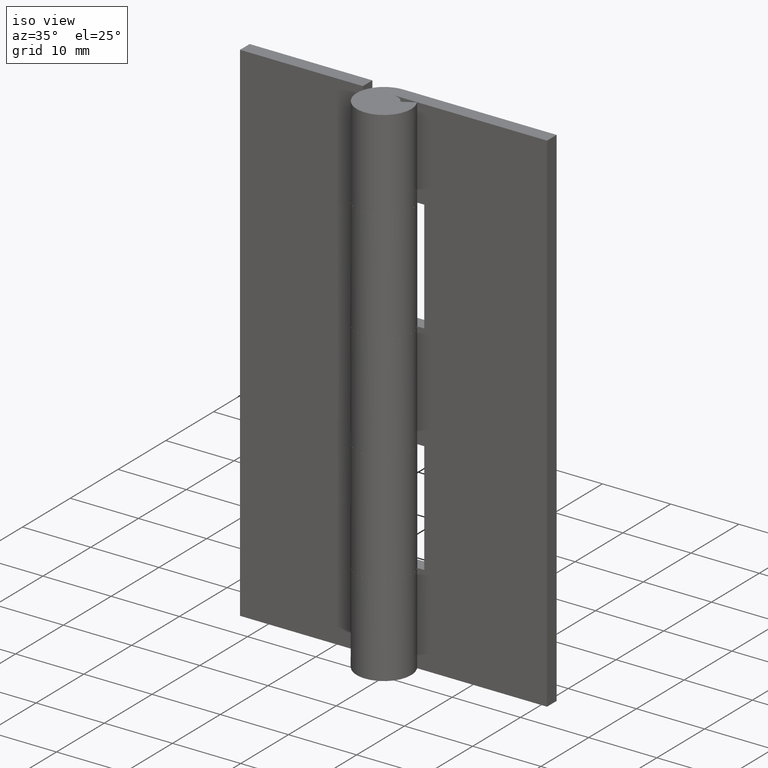
[diagram: clean part render]
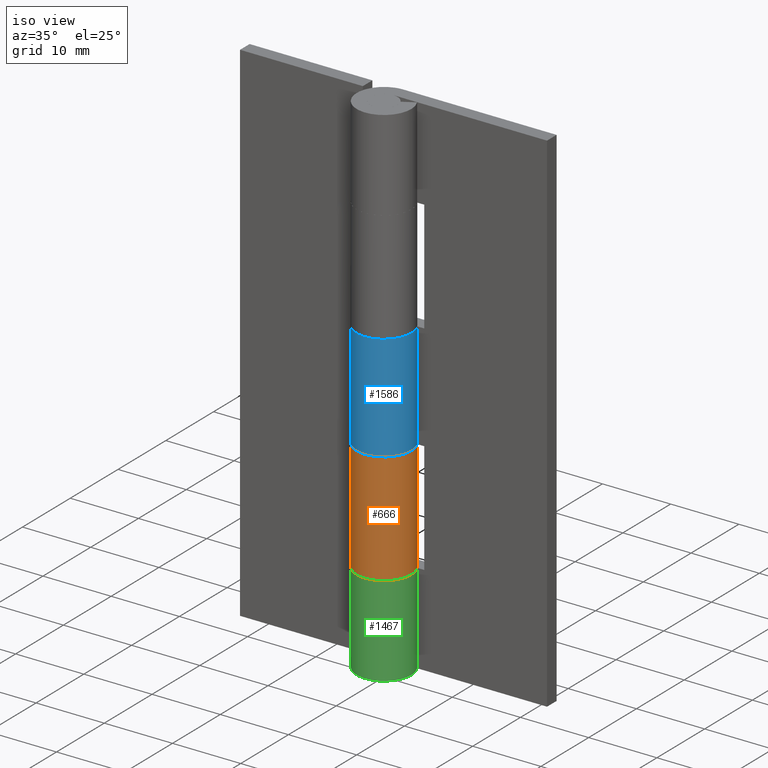
[diagram: same view with three faces highlighted in distinct colors, each labeled with its STEP entity id]
A machine part, iso view with three faces highlighted in distinct colors.
Their STEP definitions:

[orange] entity #666 — the highlighted face is a freeform B-spline surface patch.
#51=CARTESIAN_POINT('',(0.0,4.0,29.699996999999900));
#52=VERTEX_POINT('',#51);
#93=CARTESIAN_POINT('',(-3.492491947020060,1.950000000000000,29.699996999999900));
#94=VERTEX_POINT('',#93);
#100=CARTESIAN_POINT('',(0.0,4.0,29.699996999999900));
#101=CARTESIAN_POINT('',(3.057904543451449,4.000000000000001,29.699996999999900));
#102=CARTESIAN_POINT('',(3.859957943328416,1.049154266891131,29.699996999999900));
#103=CARTESIAN_POINT('',(4.662011343205384,-1.901691466217742,29.699996999999900));
#104=CARTESIAN_POINT('',(2.024845673131658,-3.449637662132069,29.699996999999900));
#105=CARTESIAN_POINT('',(-0.612319996942068,-4.997583858046397,29.699996999999900));
#106=CARTESIAN_POINT('',(-2.797770204447359,-2.858755303118227,29.699996999999900));
#107=CARTESIAN_POINT('',(-4.983220411952647,-0.719926748190060,29.699996999999900));
#108=CARTESIAN_POINT('',(-3.492491947020063,1.950000000000003,29.699996999999900));
#116=(BOUNDED_CURVE()B_SPLINE_CURVE(2,(#100,#101,#102,#103,#104,#105,#106,#107,#108),.UNSPECIFIED.,.F.,.U.)B_SPLINE_CURVE_WITH_KNOTS((3,2,2,2,3),(0.0,0.250000000000000,0.500000000000000,0.750000000000000,1.0),.UNSPECIFIED.)CURVE()GEOMETRIC_REPRESENTATION_ITEM()RATIONAL_B_SPLINE_CURVE((1.0,0.794445897063728,1.0,0.794445897063728,1.0,0.794445897063728,1.0,0.794445897063728,1.0))REPRESENTATION_ITEM(''));
#117=EDGE_CURVE('',#52,#94,#116,.T.);
#225=CARTESIAN_POINT('',(-3.492491947020060,1.950000000000000,13.300003000000000));
#226=VERTEX_POINT('',#225);
#227=CARTESIAN_POINT('',(0.0,4.0,13.300003000000000));
#228=VERTEX_POINT('',#227);
#229=CARTESIAN_POINT('',(-3.492491947020063,1.950000000000002,13.300003000000000));
#230=CARTESIAN_POINT('',(-4.983220411952647,-0.719926748190061,13.300002999999998));
#231=CARTESIAN_POINT('',(-2.797770204447358,-2.858755303118228,13.300003000000000));
#232=CARTESIAN_POINT('',(-0.612319996942067,-4.997583858046397,13.300002999999998));
#233=CARTESIAN_POINT('',(2.024845673131658,-3.449637662132068,13.300003000000000));
#234=CARTESIAN_POINT('',(4.662011343205381,-1.901691466217742,13.300002999999998));
#235=CARTESIAN_POINT('',(3.859957943328416,1.049154266891129,13.300003000000000));
#236=CARTESIAN_POINT('',(3.057904543451453,4.000000000000000,13.300002999999998));
#237=CARTESIAN_POINT('',(0.0,4.0,13.300003000000000));
#245=(BOUNDED_CURVE()B_SPLINE_CURVE(2,(#229,#230,#231,#232,#233,#234,#235,#236,#237),.UNSPECIFIED.,.F.,.U.)B_SPLINE_CURVE_WITH_KNOTS((3,2,2,2,3),(0.0,0.250000000000000,0.500000000000000,0.750000000000000,1.0),.UNSPECIFIED.)CURVE()GEOMETRIC_REPRESENTATION_ITEM()RATIONAL_B_SPLINE_CURVE((1.0,0.794445897063728,1.0,0.794445897063728,1.0,0.794445897063728,1.0,0.794445897063728,1.0))REPRESENTATION_ITEM(''));
#246=EDGE_CURVE('',#226,#228,#245,.T.);
#607=CARTESIAN_POINT('',(-3.492491947020060,1.950000000000000,29.699996999999900));
#608=CARTESIAN_POINT('',(-3.492491947020060,1.950000000000000,13.300003000000000));
#609=QUASI_UNIFORM_CURVE('',1,(#607,#608),.UNSPECIFIED.,.F.,.U.);
#610=EDGE_CURVE('',#94,#226,#609,.T.);
#634=CARTESIAN_POINT('',(-3.410560657416367,2.089994258863795,30.109996849999899));
#635=CARTESIAN_POINT('',(-3.410560657416367,2.089994258863795,12.879753153750000));
#636=CARTESIAN_POINT('',(-5.991488624861849,-2.121697399169993,30.109996849999909));
#637=CARTESIAN_POINT('',(-5.991488624861849,-2.121697399169993,12.879753153750002));
#638=CARTESIAN_POINT('',(-1.335227436935084,-3.770565964368712,30.109996849999899));
#639=CARTESIAN_POINT('',(-1.335227436935084,-3.770565964368712,12.879753153750000));
#640=CARTESIAN_POINT('',(3.321033750991682,-5.419434529567431,30.109996849999909));
#641=CARTESIAN_POINT('',(3.321033750991682,-5.419434529567431,12.879753153750002));
#642=CARTESIAN_POINT('',(3.965779445495240,-0.522104768880208,30.109996849999899));
#643=CARTESIAN_POINT('',(3.965779445495240,-0.522104768880208,12.879753153750000));
#644=CARTESIAN_POINT('',(4.610525139998799,4.375224991807015,30.109996849999909));
#645=CARTESIAN_POINT('',(4.610525139998799,4.375224991807015,12.879753153750002));
#646=CARTESIAN_POINT('',(-0.313836382911377,3.987669334932510,30.109996849999899));
#647=CARTESIAN_POINT('',(-0.313836382911377,3.987669334932510,12.879753153750000));
#655=(BOUNDED_SURFACE()B_SPLINE_SURFACE(1,2,((#634,#636,#638,#640,#642,#644,#646),(#635,#637,#639,#641,#643,#645,#647)),.UNSPECIFIED.,.F.,.F.,.U.)B_SPLINE_SURFACE_WITH_KNOTS((2,2),(3,2,2,3),(0.0,17.230243696249900),(0.0,7.631608523170559,15.263217046341120,22.894825569511681),.UNSPECIFIED.)GEOMETRIC_REPRESENTATION_ITEM()RATIONAL_B_SPLINE_SURFACE(((1.0,0.629320391049838,1.0,0.629320391049838,1.0,0.629320391049838,1.0),(1.0,0.629320391049838,1.0,0.629320391049838,1.0,0.629320391049838,1.0)))REPRESENTATION_ITEM('')SURFACE());
#656=ORIENTED_EDGE('',*,*,#117,.T.);
#657=ORIENTED_EDGE('',*,*,#610,.T.);
#658=ORIENTED_EDGE('',*,*,#246,.T.);
#659=CARTESIAN_POINT('',(0.0,4.0,29.699996999999900));
#660=CARTESIAN_POINT('',(0.0,4.0,13.300003000000000));
#661=QUASI_UNIFORM_CURVE('',1,(#659,#660),.UNSPECIFIED.,.F.,.U.);
#662=EDGE_CURVE('',#52,#228,#661,.T.);
#663=ORIENTED_EDGE('',*,*,#662,.F.);
#664=EDGE_LOOP('',(#656,#657,#658,#663));
#665=FACE_OUTER_BOUND('',#664,.T.);
#666=ADVANCED_FACE('',(#665),#655,.T.);

[blue] entity #1586 — the highlighted face is a freeform B-spline surface patch.
#766=CARTESIAN_POINT('',(3.492491947020065,1.950000000000000,29.699997000000248));
#767=VERTEX_POINT('',#766);
#768=CARTESIAN_POINT('',(-7.347614E-016,4.0,29.699997000000199));
#769=VERTEX_POINT('',#768);
#770=CARTESIAN_POINT('',(3.492491947020065,1.949999999999999,29.699997000000248));
#771=CARTESIAN_POINT('',(4.983220411952646,-0.719926748190065,29.699997000000248));
#772=CARTESIAN_POINT('',(2.797770204447355,-2.858755303118231,29.699997000000248));
#773=CARTESIAN_POINT('',(0.612319996942063,-4.997583858046395,29.699997000000248));
#774=CARTESIAN_POINT('',(-2.024845673131658,-3.449637662132068,29.699997000000248));
#775=CARTESIAN_POINT('',(-4.662011343205381,-1.901691466217742,29.699997000000248));
#776=CARTESIAN_POINT('',(-3.859957943328416,1.049154266891129,29.699997000000248));
#777=CARTESIAN_POINT('',(-3.057904543451453,4.0,29.699997000000248));
#778=CARTESIAN_POINT('',(0.0,4.0,29.699997000000248));
#786=(BOUNDED_CURVE()B_SPLINE_CURVE(2,(#770,#771,#772,#773,#774,#775,#776,#777,#778),.UNSPECIFIED.,.F.,.U.)B_SPLINE_CURVE_WITH_KNOTS((3,2,2,2,3),(0.0,0.250000000000000,0.500000000000000,0.750000000000000,1.0),.UNSPECIFIED.)CURVE()GEOMETRIC_REPRESENTATION_ITEM()RATIONAL_B_SPLINE_CURVE((1.0,0.794445897063728,1.0,0.794445897063728,1.0,0.794445897063728,1.0,0.794445897063728,1.0))REPRESENTATION_ITEM(''));
#787=EDGE_CURVE('',#767,#769,#786,.T.);
#958=CARTESIAN_POINT('',(-7.347638E-016,4.0,45.300002999999798));
#959=VERTEX_POINT('',#958);
#965=CARTESIAN_POINT('',(3.492491947020065,1.950000000000000,45.300002999999798));
#966=VERTEX_POINT('',#965);
#967=CARTESIAN_POINT('',(0.0,4.0,45.300002999999798));
#968=CARTESIAN_POINT('',(-3.057904543451449,4.000000000000001,45.300002999999805));
#969=CARTESIAN_POINT('',(-3.859957943328416,1.049154266891131,45.300002999999798));
#970=CARTESIAN_POINT('',(-4.662011343205382,-1.901691466217738,45.300002999999805));
#971=CARTESIAN_POINT('',(-2.024845673131661,-3.449637662132068,45.300002999999798));
#972=CARTESIAN_POINT('',(0.612319996942061,-4.997583858046397,45.300002999999805));
#973=CARTESIAN_POINT('',(2.797770204447353,-2.858755303118233,45.300002999999798));
#974=CARTESIAN_POINT('',(4.983220411952645,-0.719926748190069,45.300002999999805));
#975=CARTESIAN_POINT('',(3.492491947020067,1.949999999999997,45.300002999999798));
#983=(BOUNDED_CURVE()B_SPLINE_CURVE(2,(#967,#968,#969,#970,#971,#972,#973,#974,#975),.UNSPECIFIED.,.F.,.U.)B_SPLINE_CURVE_WITH_KNOTS((3,2,2,2,3),(0.0,0.250000000000000,0.500000000000000,0.750000000000000,1.0),.UNSPECIFIED.)CURVE()GEOMETRIC_REPRESENTATION_ITEM()RATIONAL_B_SPLINE_CURVE((1.0,0.794445897063728,1.0,0.794445897063728,1.0,0.794445897063728,1.0,0.794445897063728,1.0))REPRESENTATION_ITEM(''));
#984=EDGE_CURVE('',#959,#966,#983,.T.);
#1318=CARTESIAN_POINT('',(3.492491947020065,1.950000000000000,45.300002999999798));
#1319=CARTESIAN_POINT('',(3.492491947020065,1.950000000000000,29.699997000000248));
#1320=QUASI_UNIFORM_CURVE('',1,(#1318,#1319),.UNSPECIFIED.,.F.,.U.);
#1321=EDGE_CURVE('',#966,#767,#1320,.T.);
#1415=CARTESIAN_POINT('',(-7.347638E-016,4.0,45.300002999999798));
#1416=CARTESIAN_POINT('',(-7.347614E-016,4.0,29.699997000000199));
#1417=QUASI_UNIFORM_CURVE('',1,(#1415,#1416),.UNSPECIFIED.,.F.,.U.);
#1418=EDGE_CURVE('',#959,#769,#1417,.T.);
#1558=CARTESIAN_POINT('',(0.162173709109514,3.996711108908630,45.690003149999797));
#1559=CARTESIAN_POINT('',(0.162173709109514,3.996711108908630,29.300246846250211));
#1560=CARTESIAN_POINT('',(-4.773353474773805,4.196978961152711,45.690003149999797));
#1561=CARTESIAN_POINT('',(-4.773353474773805,4.196978961152711,29.300246846250207));
#1562=CARTESIAN_POINT('',(-3.943091192072271,-0.672333139895742,45.690003149999797));
#1563=CARTESIAN_POINT('',(-3.943091192072271,-0.672333139895742,29.300246846250211));
#1564=CARTESIAN_POINT('',(-3.112828909370736,-5.541645240944193,45.690003149999797));
#1565=CARTESIAN_POINT('',(-3.112828909370736,-5.541645240944193,29.300246846250207));
#1566=CARTESIAN_POINT('',(1.477455804475205,-3.717139269091557,45.690003149999797));
#1567=CARTESIAN_POINT('',(1.477455804475205,-3.717139269091557,29.300246846250211));
#1568=CARTESIAN_POINT('',(6.067740518321146,-1.892633297238919,45.690003149999797));
#1569=CARTESIAN_POINT('',(6.067740518321146,-1.892633297238919,29.300246846250207));
#1570=CARTESIAN_POINT('',(3.328730523238366,2.218006560779571,45.690003149999797));
#1571=CARTESIAN_POINT('',(3.328730523238366,2.218006560779571,29.300246846250211));
#1579=(BOUNDED_SURFACE()B_SPLINE_SURFACE(1,2,((#1558,#1560,#1562,#1564,#1566,#1568,#1570),(#1559,#1561,#1563,#1565,#1567,#1569,#1571)),.UNSPECIFIED.,.F.,.F.,.U.)B_SPLINE_SURFACE_WITH_KNOTS((2,2),(3,2,2,3),(0.0,16.389756303749589),(0.0,7.631608523170560,15.263217046341120,22.894825569511681),.UNSPECIFIED.)GEOMETRIC_REPRESENTATION_ITEM()RATIONAL_B_SPLINE_SURFACE(((1.0,0.629320391049838,1.0,0.629320391049838,1.0,0.629320391049838,1.0),(1.0,0.629320391049838,1.0,0.629320391049838,1.0,0.629320391049838,1.0)))REPRESENTATION_ITEM('')SURFACE());
#1580=ORIENTED_EDGE('',*,*,#787,.F.);
#1581=ORIENTED_EDGE('',*,*,#1321,.F.);
#1582=ORIENTED_EDGE('',*,*,#984,.F.);
#1583=ORIENTED_EDGE('',*,*,#1418,.T.);
#1584=EDGE_LOOP('',(#1580,#1581,#1582,#1583));
#1585=FACE_OUTER_BOUND('',#1584,.T.);
#1586=ADVANCED_FACE('',(#1585),#1579,.T.);

[green] entity #1467 — the highlighted face is a freeform B-spline surface patch.
#872=CARTESIAN_POINT('',(-7.347614E-016,4.0,13.300003000000000));
#873=VERTEX_POINT('',#872);
#874=CARTESIAN_POINT('',(3.492491947020065,1.950000000000000,13.300003000000000));
#875=VERTEX_POINT('',#874);
#876=CARTESIAN_POINT('',(0.0,4.0,13.300003000000000));
#877=CARTESIAN_POINT('',(-3.057904543451449,4.000000000000001,13.300002999999997));
#878=CARTESIAN_POINT('',(-3.859957943328416,1.049154266891131,13.300003000000000));
#879=CARTESIAN_POINT('',(-4.662011343205382,-1.901691466217738,13.300002999999997));
#880=CARTESIAN_POINT('',(-2.024845673131661,-3.449637662132068,13.300003000000000));
#881=CARTESIAN_POINT('',(0.612319996942061,-4.997583858046397,13.300002999999997));
#882=CARTESIAN_POINT('',(2.797770204447353,-2.858755303118233,13.300003000000000));
#883=CARTESIAN_POINT('',(4.983220411952645,-0.719926748190069,13.300002999999997));
#884=CARTESIAN_POINT('',(3.492491947020067,1.949999999999997,13.300003000000000));
#892=(BOUNDED_CURVE()B_SPLINE_CURVE(2,(#876,#877,#878,#879,#880,#881,#882,#883,#884),.UNSPECIFIED.,.F.,.U.)B_SPLINE_CURVE_WITH_KNOTS((3,2,2,2,3),(0.0,0.250000000000000,0.500000000000000,0.750000000000000,1.0),.UNSPECIFIED.)CURVE()GEOMETRIC_REPRESENTATION_ITEM()RATIONAL_B_SPLINE_CURVE((1.0,0.794445897063728,1.0,0.794445897063728,1.0,0.794445897063728,1.0,0.794445897063728,1.0))REPRESENTATION_ITEM(''));
#893=EDGE_CURVE('',#873,#875,#892,.T.);
#1118=CARTESIAN_POINT('',(-7.347638E-016,4.0,0.0));
#1119=VERTEX_POINT('',#1118);
#1162=CARTESIAN_POINT('',(3.492491947020065,1.950000000000000,0.0));
#1163=VERTEX_POINT('',#1162);
#1169=CARTESIAN_POINT('',(3.492491947020065,1.949999999999999,0.0));
#1170=CARTESIAN_POINT('',(4.983220411952646,-0.719926748190065,0.0));
#1171=CARTESIAN_POINT('',(2.797770204447355,-2.858755303118231,0.0));
#1172=CARTESIAN_POINT('',(0.612319996942063,-4.997583858046395,0.0));
#1173=CARTESIAN_POINT('',(-2.024845673131658,-3.449637662132068,0.0));
#1174=CARTESIAN_POINT('',(-4.662011343205381,-1.901691466217742,0.0));
#1175=CARTESIAN_POINT('',(-3.859957943328416,1.049154266891129,0.0));
#1176=CARTESIAN_POINT('',(-3.057904543451453,4.0,0.0));
#1177=CARTESIAN_POINT('',(0.0,4.0,0.0));
#1185=(BOUNDED_CURVE()B_SPLINE_CURVE(2,(#1169,#1170,#1171,#1172,#1173,#1174,#1175,#1176,#1177),.UNSPECIFIED.,.F.,.U.)B_SPLINE_CURVE_WITH_KNOTS((3,2,2,2,3),(0.0,0.250000000000000,0.500000000000000,0.750000000000000,1.0),.UNSPECIFIED.)CURVE()GEOMETRIC_REPRESENTATION_ITEM()RATIONAL_B_SPLINE_CURVE((1.0,0.794445897063728,1.0,0.794445897063728,1.0,0.794445897063728,1.0,0.794445897063728,1.0))REPRESENTATION_ITEM(''));
#1186=EDGE_CURVE('',#1163,#1119,#1185,.T.);
#1427=CARTESIAN_POINT('',(-7.347614E-016,4.0,13.300003000000000));
#1428=CARTESIAN_POINT('',(-7.347638E-016,4.0,0.0));
#1429=QUASI_UNIFORM_CURVE('',1,(#1427,#1428),.UNSPECIFIED.,.F.,.U.);
#1430=EDGE_CURVE('',#873,#1119,#1429,.T.);
#1435=CARTESIAN_POINT('',(0.162173709109514,3.996711108908630,13.632503075000001));
#1436=CARTESIAN_POINT('',(0.162173709109514,3.996711108908630,-0.340812576875001));
#1437=CARTESIAN_POINT('',(-4.773353474773805,4.196978961152711,13.632503075000002));
#1438=CARTESIAN_POINT('',(-4.773353474773805,4.196978961152711,-0.340812576875001));
#1439=CARTESIAN_POINT('',(-3.943091192072271,-0.672333139895742,13.632503075000001));
#1440=CARTESIAN_POINT('',(-3.943091192072271,-0.672333139895742,-0.340812576875001));
#1441=CARTESIAN_POINT('',(-3.112828909370736,-5.541645240944193,13.632503075000002));
#1442=CARTESIAN_POINT('',(-3.112828909370736,-5.541645240944193,-0.340812576875001));
#1443=CARTESIAN_POINT('',(1.477455804475205,-3.717139269091557,13.632503075000001));
#1444=CARTESIAN_POINT('',(1.477455804475205,-3.717139269091557,-0.340812576875001));
#1445=CARTESIAN_POINT('',(6.067740518321146,-1.892633297238919,13.632503075000002));
#1446=CARTESIAN_POINT('',(6.067740518321146,-1.892633297238919,-0.340812576875001));
#1447=CARTESIAN_POINT('',(3.328730523238366,2.218006560779571,13.632503075000001));
#1448=CARTESIAN_POINT('',(3.328730523238366,2.218006560779571,-0.340812576875001));
#1456=(BOUNDED_SURFACE()B_SPLINE_SURFACE(1,2,((#1435,#1437,#1439,#1441,#1443,#1445,#1447),(#1436,#1438,#1440,#1442,#1444,#1446,#1448)),.UNSPECIFIED.,.F.,.F.,.U.)B_SPLINE_SURFACE_WITH_KNOTS((2,2),(3,2,2,3),(0.0,13.973315651875000),(0.0,7.631608523170560,15.263217046341120,22.894825569511681),.UNSPECIFIED.)GEOMETRIC_REPRESENTATION_ITEM()RATIONAL_B_SPLINE_SURFACE(((1.0,0.629320391049838,1.0,0.629320391049838,1.0,0.629320391049838,1.0),(1.0,0.629320391049838,1.0,0.629320391049838,1.0,0.629320391049838,1.0)))REPRESENTATION_ITEM('')SURFACE());
#1457=CARTESIAN_POINT('',(3.492491947020065,1.950000000000000,13.300003000000000));
#1458=CARTESIAN_POINT('',(3.492491947020065,1.950000000000000,0.0));
#1459=QUASI_UNIFORM_CURVE('',1,(#1457,#1458),.UNSPECIFIED.,.F.,.U.);
#1460=EDGE_CURVE('',#875,#1163,#1459,.T.);
#1461=ORIENTED_EDGE('',*,*,#1460,.F.);
#1462=ORIENTED_EDGE('',*,*,#893,.F.);
#1463=ORIENTED_EDGE('',*,*,#1430,.T.);
#1464=ORIENTED_EDGE('',*,*,#1186,.F.);
#1465=EDGE_LOOP('',(#1461,#1462,#1463,#1464));
#1466=FACE_OUTER_BOUND('',#1465,.T.);
#1467=ADVANCED_FACE('',(#1466),#1456,.T.);